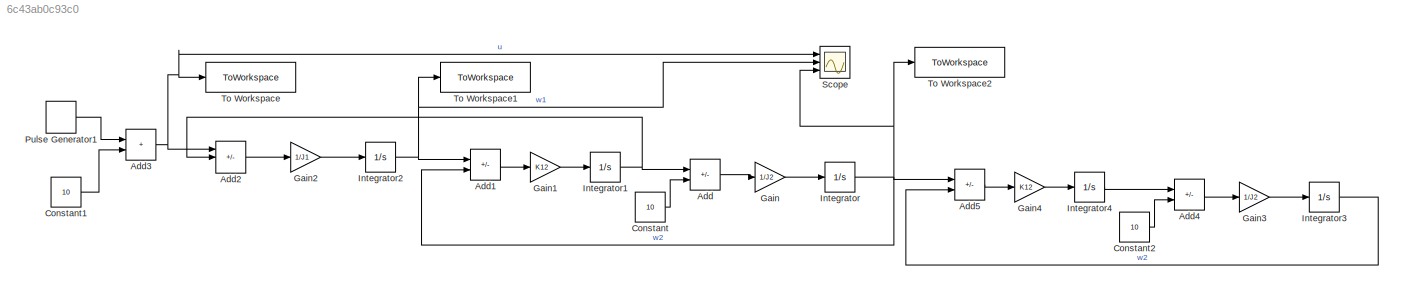
MODEL slx_6c43ab0c93c0
KIND model
CONFIG AbsTol = auto
CONFIG EnableMultiTasking = off
CONFIG FixedStep = 2e-5
CONFIG MaxStep = auto
CONFIG MinStep = auto
CONFIG RelTol = 1e-3
CONFIG SampleTimeConstraint = Unconstrained
CONFIG SolverName = FixedStepAuto
CONFIG StartTime = 0.0
CONFIG StopTime = 20
BLOCK [Sum] Add
  IconShape = rectangular
  Inputs = +-
  Ports = [2, 1]
BLOCK [Sum] Add1
  IconShape = rectangular
  Inputs = +-
  Ports = [2, 1]
BLOCK [Sum] Add2
  IconShape = rectangular
  Inputs = +--
  Ports = [3, 1]
BLOCK [Sum] Add3
  IconShape = rectangular
  Ports = [2, 1]
BLOCK [Sum] Add4
  IconShape = rectangular
  Inputs = +-
  Ports = [2, 1]
BLOCK [Sum] Add5
  IconShape = rectangular
  Inputs = +-
  Ports = [2, 1]
BLOCK [Constant] Constant
  Value = 10
BLOCK [Constant] Constant1
  Value = 10
BLOCK [Constant] Constant2
  Value = 10
BLOCK [Gain] Gain
  Gain = 1/J2
BLOCK [Gain] Gain1
  Gain = K12
BLOCK [Gain] Gain2
  Gain = 1/J1
BLOCK [Gain] Gain3
  Gain = 1/J2
BLOCK [Gain] Gain4
  Gain = K12
BLOCK [Integrator] Integrator
  Ports = [1, 1]
BLOCK [Integrator] Integrator1
  Ports = [1, 1]
BLOCK [Integrator] Integrator2
  Ports = [1, 1]
BLOCK [Integrator] Integrator3
  Ports = [1, 1]
BLOCK [Integrator] Integrator4
  Ports = [1, 1]
BLOCK [DiscretePulseGenerator] Pulse Generator1
  Amplitude = 10
  Period = 5
  Ports = [0, 1]
  PulseType = Time based
  PulseWidth = 50
BLOCK [Scope] Scope
  Floating = off
  NumInputPorts = 3
  Ports = [3]
  ScopeSpecificationString = Simulink.scopes.TimeScopeBlockCfg('CurrentConfiguration', extmgr.ConfigurationSet(extmgr.Configuration('Core','General UI',true),extmgr.Configuration('Core','Source UI',true),extmgr.Configuration('Sources','WiredSimulink',true),extmgr.Configuration('Visuals','Time Domain',true,'SerializedDisplays',{struct('MinYLimReal','-2.51084','MaxYLimReal','22.5012','YLabelReal','','MinYLimMag','0.00000','MaxY...<+1361ch>
BLOCK [ToWorkspace] To Workspace
  FixptAsFi = on
  MaxDataPoints = inf
  Ports = [1]
  SampleTime = 0.001
  SaveFormat = Timeseries
  VariableName = u
BLOCK [ToWorkspace] To Workspace1
  FixptAsFi = on
  MaxDataPoints = inf
  Ports = [1]
  SampleTime = 0.001
  SaveFormat = Timeseries
  VariableName = w1
BLOCK [ToWorkspace] To Workspace2
  FixptAsFi = on
  MaxDataPoints = inf
  Ports = [1]
  SampleTime = 0.001
  SaveFormat = Timeseries
  VariableName = w2
LINE Add1:1 -> Gain1:1
LINE Add2:1 -> Gain2:1
NET Add3:1 -> Add2:1, Scope:1, To Workspace:1
LINE Add4:1 -> Gain3:1
LINE Add5:1 -> Gain4:1
LINE Add:1 -> Gain:1
LINE Constant1:1 -> Add3:2
LINE Constant2:1 -> Add4:2
LINE Constant:1 -> Add:2
LINE Gain1:1 -> Integrator1:1
LINE Gain2:1 -> Integrator2:1
LINE Gain3:1 -> Integrator3:1
LINE Gain4:1 -> Integrator4:1
LINE Gain:1 -> Integrator:1
NET Integrator1:1 -> Add2:2, Add:1
NET Integrator2:1 -> Add1:1, Scope:2, To Workspace1:1
LINE Integrator3:1 -> Add5:2
LINE Integrator4:1 -> Add4:1
NET Integrator:1 -> Add1:2, Add5:1, Scope:3, To Workspace2:1
LINE Pulse Generator1:1 -> Add3:1
note: NET lines group one-source signal fan-out (src -> all destinations, sorted); 1:1 wires keep LINE
